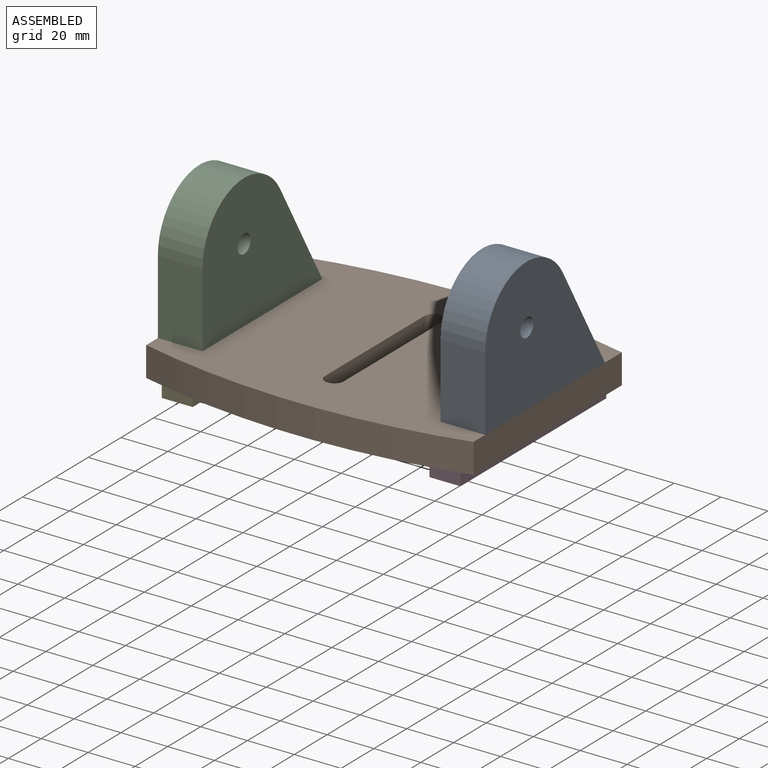
[diagram: assembled view]
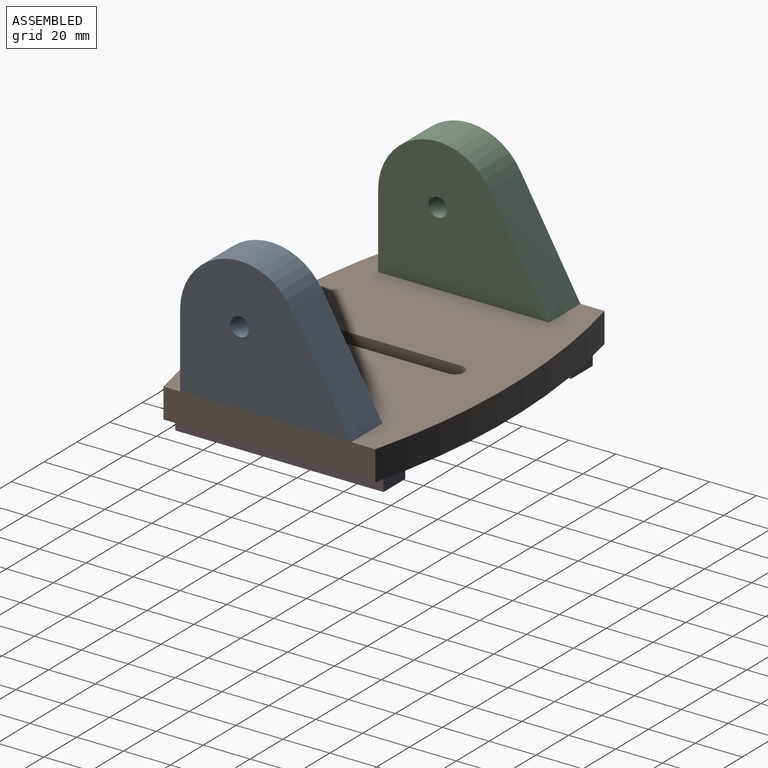
[diagram: assembled view, second angle]
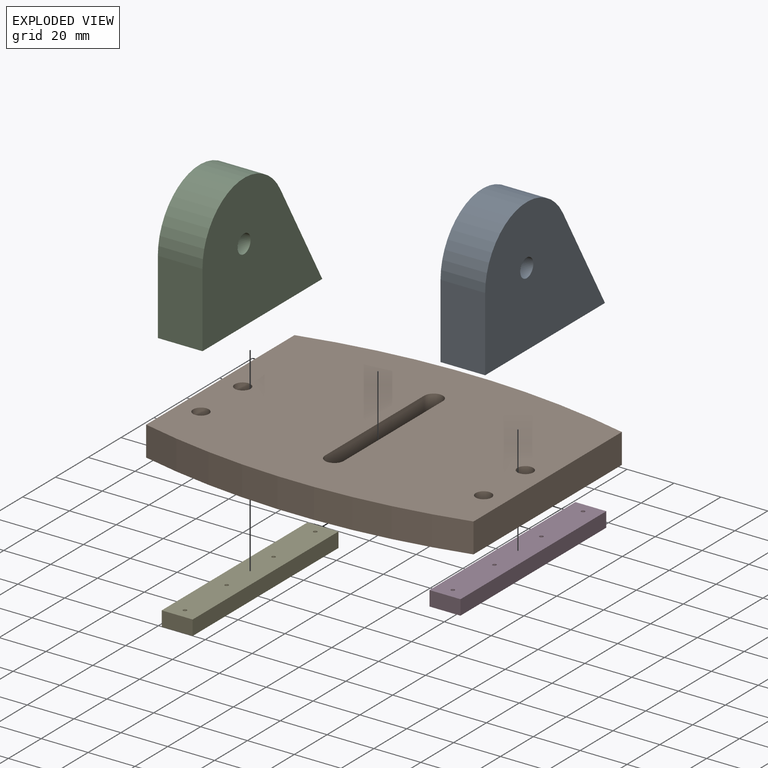
[diagram: exploded view]
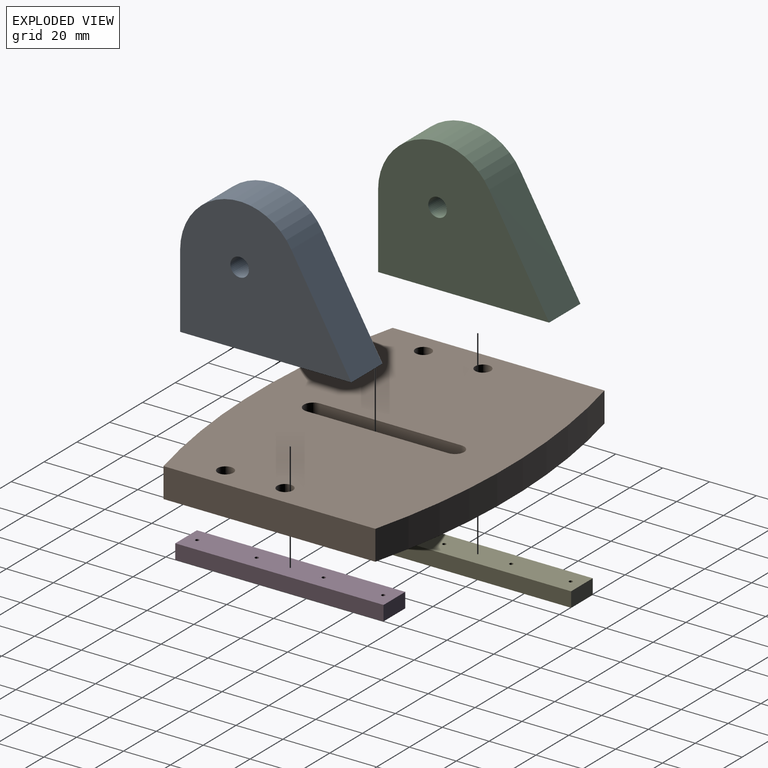
[diagram: exploded view, second angle]
ASSEMBLY  parts=5 mates=12
PART A: 11 faces, bbox 19.1x73x57.2 mm
  f0: plane 44.44x25.62mm, normal (0,-0.87,0.5), area 977.1mm2, adj f1,f4,f5,f6
  f1: plane 73.03x19.05mm, normal (0,0,-1), area 1320mm2, adj f0,f2,f5,f6,f7,f9
  f2: plane 31.75x19.05mm, normal (0,1,0), area 604.8mm2, adj f1,f4,f5,f6
  f3: cylinder r=3.98mm len=19.05mm, axis (-1,0,0), area 475.8mm2, adj f5,f6
  f4: cylinder r=25.4mm len=47.4mm, axis (-1,0,0), area 1267.1mm2, adj f0,f2,f5,f6
  f5: plane 73.03x57.15mm, normal (1,0,0), area 3009mm2, adj f0,f1,f2,f3,f4
  f6: plane 73.03x57.15mm, normal (-1,0,0), area 3009mm2, adj f0,f1,f2,f3,f4
  f7: cylinder r=3.37mm len=41.28mm, axis (0,0,-1), area 872.8mm2, adj f1,f8
  f8: plane 6.73x6.73mm, normal (0,0,-1), area 35.6mm2, adj f7
  f9: cylinder r=3.37mm len=41.28mm, axis (0,0,-1), area 872.8mm2, adj f1,f10
  f10: plane 6.73x6.73mm, normal (0,0,-1), area 35.6mm2, adj f9
PART B: 30 faces, bbox 139.7x107.8x12.7 mm
  f0: plane 60.45x12.7mm, normal (1,0,0), area 767.7mm2, adj f1,f9,f12,f13
  f1: cylinder r=3.98mm len=12.7mm, axis (0,0,-1), area 158.6mm2, adj f0,f2,f12,f13
  f2: plane 60.45x12.7mm, normal (-1,0,0), area 767.7mm2, adj f1,f9,f12,f13
  f3: plane 90.42x12.7mm, normal (-1,0,0), area 1148.4mm2, adj f4,f10,f12,f13
  f4: cylinder r=285.75mm len=139.7mm, axis (0,0,-1), area 1792.4mm2, adj f3,f5,f12,f13
  f5: plane 90.42x12.7mm, normal (1,0,0), area 1148.4mm2, adj f4,f10,f12,f13
  f6: cylinder r=3.37mm len=12.7mm, axis (0,0,-1), area 268.6mm2, adj f12,f13
  f7: cylinder r=3.37mm len=12.7mm, axis (0,0,-1), area 268.6mm2, adj f12,f13
  f8: cylinder r=3.37mm len=12.7mm, axis (0,0,-1), area 268.6mm2, adj f12,f13
  f9: cylinder r=3.98mm len=12.7mm, axis (0,0,-1), area 158.6mm2, adj f0,f2,f12,f13
  f10: cylinder r=285.75mm len=139.7mm, axis (0,0,-1), area 1792.4mm2, adj f3,f5,f12,f13
  f11: cylinder r=3.37mm len=12.7mm, axis (0,0,-1), area 268.6mm2, adj f12,f13
  f12: plane 139.7x107.76mm, normal (0,0,1), area 13579.3mm2, adj f0,f1,f2,f3,f4,f5,f6,f7
  f13: plane 139.7x107.76mm, normal (0,0,-1), area 13563.2mm2, adj f0,f1,f2,f3,f4,f5,f6,f7
  f14: cylinder r=0.8mm len=9.53mm, axis (0,0,-1), area 47.9mm2, adj f13,f15
  f15: plane 1.6x1.6mm, normal (0,0,-1), area 2mm2, adj f14
  f16: cylinder r=0.8mm len=9.53mm, axis (0,0,-1), area 47.9mm2, adj f13,f17
  f17: plane 1.6x1.6mm, normal (0,0,-1), area 2mm2, adj f16
  f18: cylinder r=0.8mm len=9.53mm, axis (0,0,-1), area 47.9mm2, adj f13,f19
  f19: plane 1.6x1.6mm, normal (0,0,-1), area 2mm2, adj f18
  f20: cylinder r=0.8mm len=9.53mm, axis (0,0,-1), area 47.9mm2, adj f13,f21
  f21: plane 1.6x1.6mm, normal (0,0,-1), area 2mm2, adj f20
  f22: cylinder r=0.8mm len=9.53mm, axis (0,0,-1), area 47.9mm2, adj f13,f23
  f23: plane 1.6x1.6mm, normal (0,0,-1), area 2mm2, adj f22
  f24: cylinder r=0.8mm len=9.53mm, axis (0,0,-1), area 47.9mm2, adj f13,f25
  f25: plane 1.6x1.6mm, normal (0,0,-1), area 2mm2, adj f24
  f26: cylinder r=0.8mm len=9.53mm, axis (0,0,-1), area 47.9mm2, adj f13,f27
  f27: plane 1.6x1.6mm, normal (0,0,-1), area 2mm2, adj f26
  f28: cylinder r=0.8mm len=9.53mm, axis (0,0,-1), area 47.9mm2, adj f13,f29
  f29: plane 1.6x1.6mm, normal (0,0,-1), area 2mm2, adj f28
PART C: same geometry as A
PART D: 10 faces, bbox 13.2x88.9x6.4 mm
  f0: plane 88.9x6.35mm, normal (-1,0,0), area 564.5mm2, adj f1,f7,f8,f9
  f1: plane 13.21x6.35mm, normal (0,-1,0), area 83.9mm2, adj f0,f2,f8,f9
  f2: plane 88.9x6.35mm, normal (1,0,0), area 564.5mm2, adj f1,f7,f8,f9
  f3: cylinder r=0.8mm len=6.35mm, axis (0,0,-1), area 31.9mm2, adj f8,f9
  f4: cylinder r=0.8mm len=6.35mm, axis (0,0,-1), area 31.9mm2, adj f8,f9
  f5: cylinder r=0.8mm len=6.35mm, axis (0,0,-1), area 31.9mm2, adj f8,f9
  f6: cylinder r=0.8mm len=6.35mm, axis (0,0,-1), area 31.9mm2, adj f8,f9
  f7: plane 13.21x6.35mm, normal (0,1,0), area 83.9mm2, adj f0,f2,f8,f9
  f8: plane 88.9x13.21mm, normal (0,0,1), area 1166.1mm2, adj f0,f1,f2,f3,f4,f5,f6,f7
  f9: plane 88.9x13.21mm, normal (0,0,-1), area 1166.1mm2, adj f0,f1,f2,f3,f4,f5,f6,f7
PART E: same geometry as D
PLACE A rot(axis=(0,0,1),180deg) t=(18.63,14.22,117.97)mm
PLACE B rot(axis=(0,0,-1),0deg) t=(-121.07,-65.92,105.27)mm
PLACE C rot(axis=(0,0,1),180deg) t=(-102.02,14.22,117.97)mm
PLACE D t=(57.94,-37.45,98.92)mm
PLACE E t=(-56.36,-37.45,98.92)mm
MATE cylindrical B.f7 <-> C.f7  axis (0,0,1) through (-111.55,-46.11,117.97)mm
MATE planar A.f1 <-> B.f12  axis (0,0,-1) through (9.1,-21.7,117.97)mm
MATE cylindrical A.f9 <-> B.f11  axis (0,0,-1) through (9.1,-20.71,117.97)mm
MATE cylindrical B.f8 <-> C.f9  axis (0,0,1) through (-111.55,-20.71,117.97)mm
MATE cylindrical D.f4 <-> B.f24  axis (0,0,1) through (5.93,-60.39,105.27)mm
MATE cylindrical E.f6 <-> B.f26  axis (0,0,1) through (-108.37,18.98,105.27)mm
MATE planar B.f12 <-> C.f1  axis (0,0,1) through (-55.2,9.52,117.97)mm
MATE cylindrical B.f6 <-> A.f7  axis (0,0,1) through (9.1,-46.11,117.97)mm
MATE planar D.f8 <-> B.f13  axis (0,0,1) through (5.93,-20.71,105.27)mm
MATE cylindrical D.f6 <-> B.f18  axis (0,0,1) through (5.93,18.98,105.27)mm
MATE planar B.f13 <-> E.f4  axis (0,0,-1) through (-51.22,-20.57,105.27)mm
MATE cylindrical E.f4 <-> B.f16  axis (0,0,1) through (-108.37,-60.39,105.27)mm
